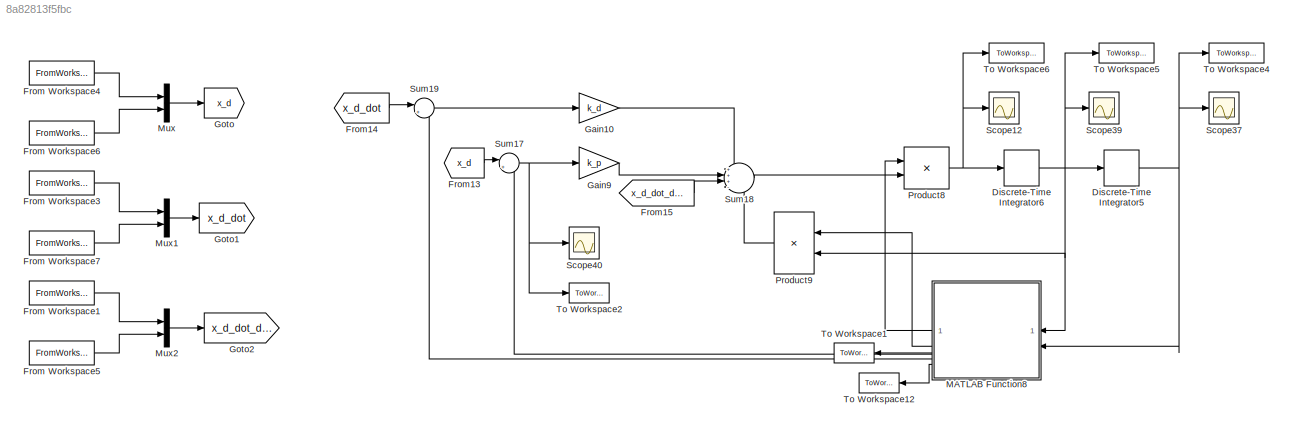
MODEL slx_8a82813f5fbc
KIND model
CONFIG AbsTol = auto
CONFIG EnableMultiTasking = off
CONFIG FixedStep = auto
CONFIG MaxStep = auto
CONFIG MinStep = auto
CONFIG RelTol = 1e-3
CONFIG SampleTimeConstraint = Unconstrained
CONFIG SolverName = VariableStepAuto
CONFIG StartTime = 0.0
CONFIG StopTime = 40
BLOCK [DiscreteIntegrator] Discrete-Time Integrator5
  ICPrevOutput = DiscIntNeverNeededParam
  ICPrevScaledInput = DiscIntNeverNeededParam
  InitialCondition = [theta1_0 theta2_0 -0.25 0]'
  InitialConditionSetting = Auto
  SampleTime = -1
BLOCK [DiscreteIntegrator] Discrete-Time Integrator6
  ICPrevOutput = DiscIntNeverNeededParam
  ICPrevScaledInput = DiscIntNeverNeededParam
  InitialCondition = [0 0 0 0]'
  InitialConditionSetting = Auto
  SampleTime = -1
BLOCK [FromWorkspace] From Workspace1
  SampleTime = T
  VariableName = p_d_dot_dot
BLOCK [FromWorkspace] From Workspace3
  SampleTime = T
  VariableName = p_d_dot
BLOCK [FromWorkspace] From Workspace4
  SampleTime = T
  VariableName = p_d
BLOCK [FromWorkspace] From Workspace5
  SampleTime = T
  VariableName = phi_d_dot_dot
BLOCK [FromWorkspace] From Workspace6
  SampleTime = T
  VariableName = phi_d
BLOCK [FromWorkspace] From Workspace7
  SampleTime = T
  VariableName = phi_d_dot
BLOCK [From] From13
  GotoTag = x_d
BLOCK [From] From14
  GotoTag = x_d_dot
BLOCK [From] From15
  GotoTag = x_d_dot_dot
BLOCK [Gain] Gain10
  Gain = k_d
BLOCK [Gain] Gain9
  Gain = k_p
BLOCK [Goto] Goto
  GotoTag = x_d
BLOCK [Goto] Goto1
  GotoTag = x_d_dot
BLOCK [Goto] Goto2
  GotoTag = x_d_dot_dot
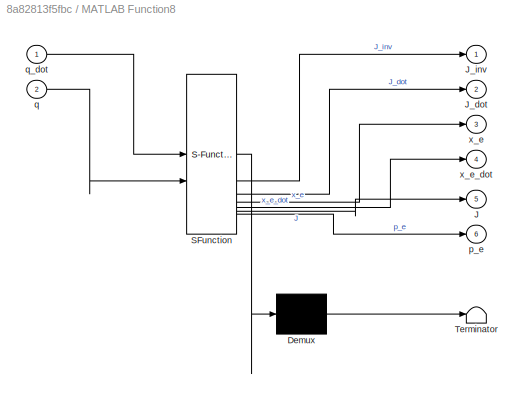
BLOCK [SubSystem] MATLAB Function8
  ErrorFcn = Stateflow.Translate.translate
  LibrarySourceBlock = simulink/User-Defined\nFunctions/MATLAB Function
  NameLocation = top
  PermitHierarchicalResolution = ExplicitOnly
  SFBlockType = MATLAB Function
  TreatAsAtomicUnit = on
BLOCK [Demux] MATLAB Function8/ Demux 
  Outputs = 1
BLOCK [S-Function] MATLAB Function8/ SFunction 
  EnableBusSupport = on
  FunctionName = sf_sfun
  PortCounts = [2 7]
  SFcnIsStateOwnerBlock = off
  SFunctionDeploymentMode = off
  Tag = Stateflow S-Function 9
BLOCK [Terminator] MATLAB Function8/ Terminator 
BLOCK [Outport] MATLAB Function8/J
  Port = 5
BLOCK [Outport] MATLAB Function8/J_dot
  Port = 2
BLOCK [Outport] MATLAB Function8/J_inv
BLOCK [Outport] MATLAB Function8/p_e
  Port = 6
BLOCK [Inport] MATLAB Function8/q
  Port = 2
BLOCK [Inport] MATLAB Function8/q_dot
BLOCK [Outport] MATLAB Function8/x_e
  Port = 3
BLOCK [Outport] MATLAB Function8/x_e_dot
  Port = 4
BLOCK [Mux] Mux
  DisplayOption = bar
  Inputs = 2
BLOCK [Mux] Mux1
  DisplayOption = bar
  Inputs = 2
BLOCK [Mux] Mux2
  DisplayOption = bar
  Inputs = 2
BLOCK [Product] Product8
  Multiplication = Matrix(*)
BLOCK [Product] Product9
  Multiplication = Matrix(*)
  NameLocation = top
BLOCK [Scope] Scope12
  Floating = off
  NumInputPorts = 1
  ScopeSpecificationString = Simulink.scopes.TimeScopeBlockCfg('CurrentConfiguration', extmgr.ConfigurationSet(extmgr.Configuration('Core','General UI',true),extmgr.Configuration('Core','Source UI',true),extmgr.Configuration('Sources','WiredSimulink',true,'DataLoggingVariableName','ScopeData6'),extmgr.Configuration('Visuals','Time Domain',true,'SerializedDisplays',{struct('MinYLimReal','-27386536581232428483349497713191795492...<+3160ch>
BLOCK [Scope] Scope37
  Floating = off
  NumInputPorts = 1
  ScopeSpecificationString = Simulink.scopes.TimeScopeBlockCfg('CurrentConfiguration', extmgr.ConfigurationSet(extmgr.Configuration('Core','General UI',true),extmgr.Configuration('Core','Source UI',true),extmgr.Configuration('Sources','WiredSimulink',true,'DataLoggingVariableName','ScopeData8'),extmgr.Configuration('Visuals','Time Domain',true,'SerializedDisplays',{struct('MinYLimReal','972140888908744258176481301387980835695...<+3224ch>
BLOCK [Scope] Scope39
  Floating = off
  NumInputPorts = 1
  ScopeSpecificationString = Simulink.scopes.TimeScopeBlockCfg('CurrentConfiguration', extmgr.ConfigurationSet(extmgr.Configuration('Core','General UI',true),extmgr.Configuration('Core','Source UI',true),extmgr.Configuration('Sources','WiredSimulink',true,'DataLoggingVariableName','ScopeData9'),extmgr.Configuration('Visuals','Time Domain',true,'SerializedDisplays',{struct('MinYLimReal','-0.81602','MaxYLimReal','1.45372','YLab...<+1462ch>
BLOCK [Scope] Scope40
  Floating = off
  NumInputPorts = 1
  ScopeSpecificationString = Simulink.scopes.TimeScopeBlockCfg('CurrentConfiguration', extmgr.ConfigurationSet(extmgr.Configuration('Core','General UI',true),extmgr.Configuration('Core','Source UI',true),extmgr.Configuration('Sources','WiredSimulink',true,'DataLoggingVariableName','ScopeData10'),extmgr.Configuration('Visuals','Time Domain',true,'SerializedDisplays',{struct('MinYLimReal','-0.000024','MaxYLimReal','0.000024','Y...<+1447ch>
BLOCK [Sum] Sum17
  Inputs = |+-
BLOCK [Sum] Sum18
  Inputs = +++-
BLOCK [Sum] Sum19
  Inputs = |+-
BLOCK [ToWorkspace] To Workspace1
  FixptAsFi = on
  MaxDataPoints = inf
  NameLocation = top
  SampleTime = -1
  SaveFormat = Structure With Time
  VariableName = J
BLOCK [ToWorkspace] To Workspace12
  FixptAsFi = on
  MaxDataPoints = inf
  NameLocation = top
  SampleTime = -1
  SaveFormat = Structure With Time
  VariableName = p_e
BLOCK [ToWorkspace] To Workspace2
  FixptAsFi = on
  MaxDataPoints = inf
  SampleTime = -1
  SaveFormat = Structure With Time
  VariableName = e
BLOCK [ToWorkspace] To Workspace4
  FixptAsFi = on
  MaxDataPoints = inf
  SampleTime = -1
  SaveFormat = Structure With Time
  VariableName = q_d
BLOCK [ToWorkspace] To Workspace5
  FixptAsFi = on
  MaxDataPoints = inf
  SampleTime = -1
  SaveFormat = Structure With Time
  VariableName = q_d_dot
BLOCK [ToWorkspace] To Workspace6
  FixptAsFi = on
  MaxDataPoints = inf
  SampleTime = -1
  SaveFormat = Structure With Time
  VariableName = q_d_dot_dot
NET Discrete-Time Integrator5:1 -> MATLAB Function8:2, Scope37:1, To Workspace4:1
NET Discrete-Time Integrator6:1 -> Discrete-Time Integrator5:1, MATLAB Function8:1, Product9:2, Scope39:1, To Workspace5:1
LINE From Workspace1:1 -> Mux2:1
LINE From Workspace3:1 -> Mux1:1
LINE From Workspace4:1 -> Mux:1
LINE From Workspace5:1 -> Mux2:2
LINE From Workspace6:1 -> Mux:2
LINE From Workspace7:1 -> Mux1:2
LINE From13:1 -> Sum17:1
LINE From14:1 -> Sum19:1
LINE From15:1 -> Sum18:3
LINE Gain10:1 -> Sum18:1
LINE Gain9:1 -> Sum18:2
LINE MATLAB Function8:1 -> Product8:1
LINE MATLAB Function8:2 -> Product9:1
LINE MATLAB Function8:3 -> Sum17:2
LINE MATLAB Function8:4 -> Sum19:2
LINE MATLAB Function8:5 -> To Workspace1:1
LINE MATLAB Function8:6 -> To Workspace12:1
LINE Mux1:1 -> Goto1:1
LINE Mux2:1 -> Goto2:1
LINE Mux:1 -> Goto:1
NET Product8:1 -> Discrete-Time Integrator6:1, Scope12:1, To Workspace6:1
LINE Product9:1 -> Sum18:4
NET Sum17:1 -> Gain9:1, Scope40:1, To Workspace2:1
LINE Sum18:1 -> Product8:2
LINE Sum19:1 -> Gain10:1
note: NET lines group one-source signal fan-out (src -> all destinations, sorted); 1:1 wires keep LINE
CHART MATLAB Function8 states=1 transitions=1
  STATE_LABEL 'eML_blk_kernel()'
  STATE_LABEL 'SCRIPT:\nfunction [J_inv,J_dot,x_e,x_e_dot,J,p_e] = kin(q_dot,q)\n\n    q1 = q(1); q2 = q(2); q3 = q(3); q4 = q(4);\n    q_dot1 = q_dot(1); q_dot2 = q_dot(2); q_dot3 = q_dot(3); q_dot4 = q_dot(4);\n\n    J = [- sin(q1)/2 - (cos(q1)*sin(q2))/2 - (cos(q2)*sin(q1))/2, - (cos(q1)*sin(q2))/2 - (cos(q2)*sin(q1))/2, 0, 0;\n           cos(q1)/2 + (cos(q1)*cos(q2))/2 - (sin(q1)*sin(q2))/2,   (cos(q1)*cos(q2))/2 -...<+1686ch>'
CHART  states=0 transitions=0
